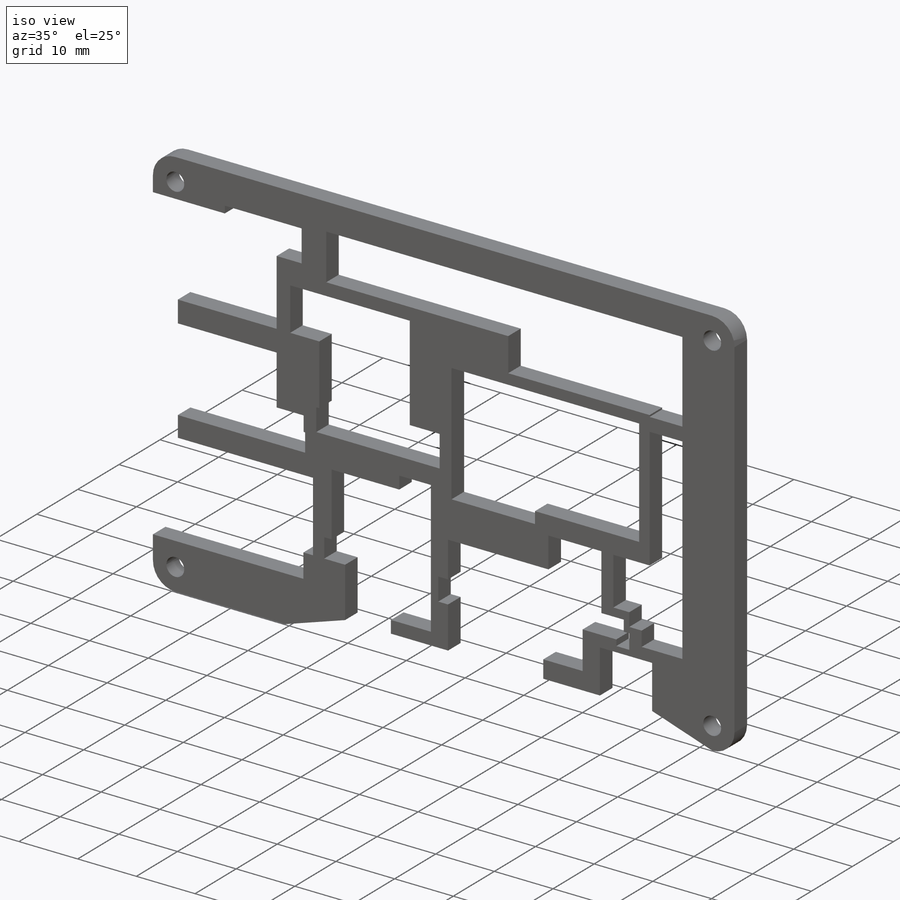
[diagram: iso view]
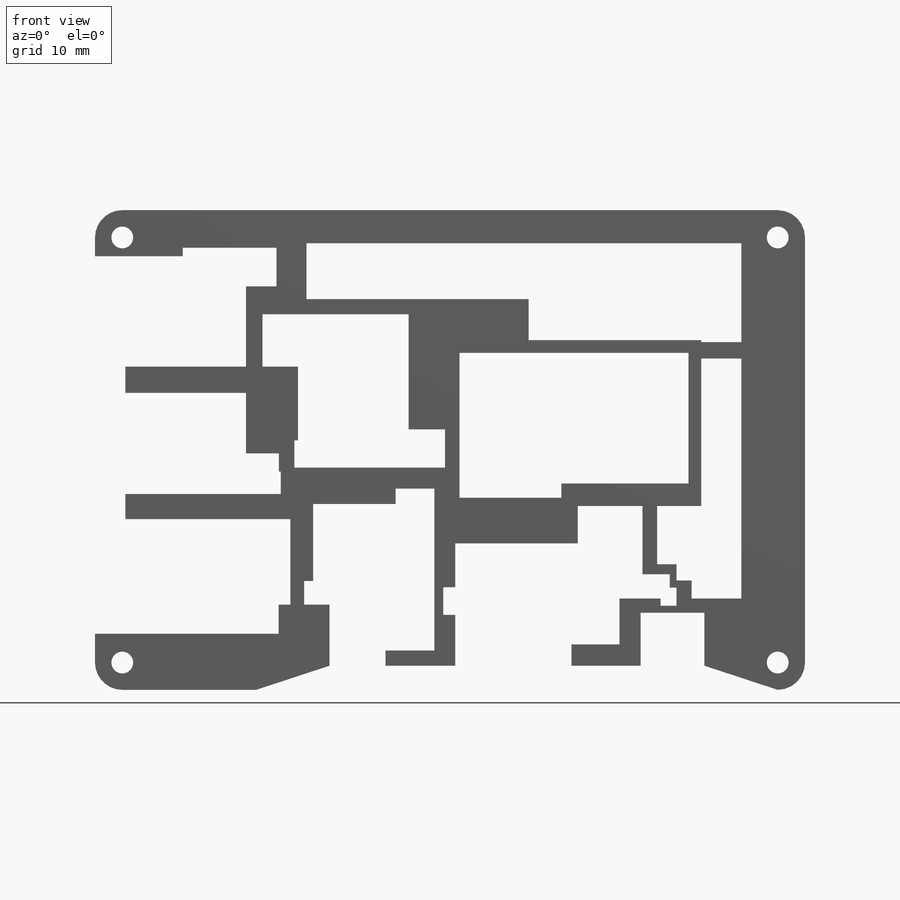
[diagram: front view]
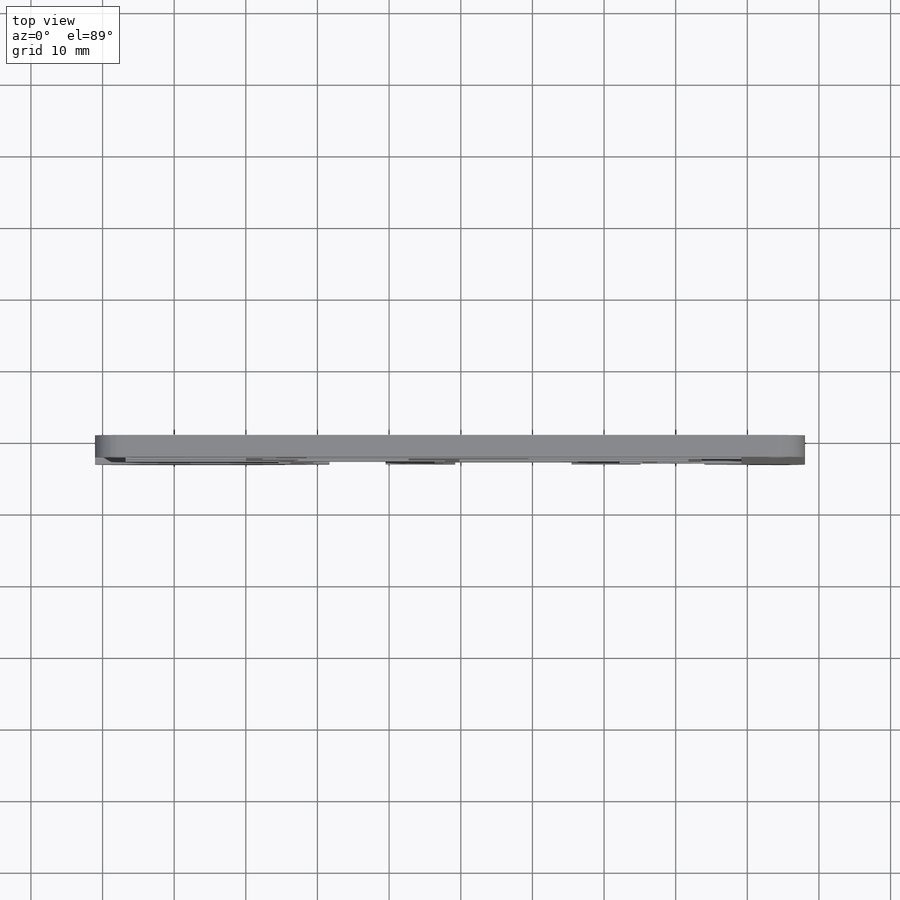
[diagram: top view]
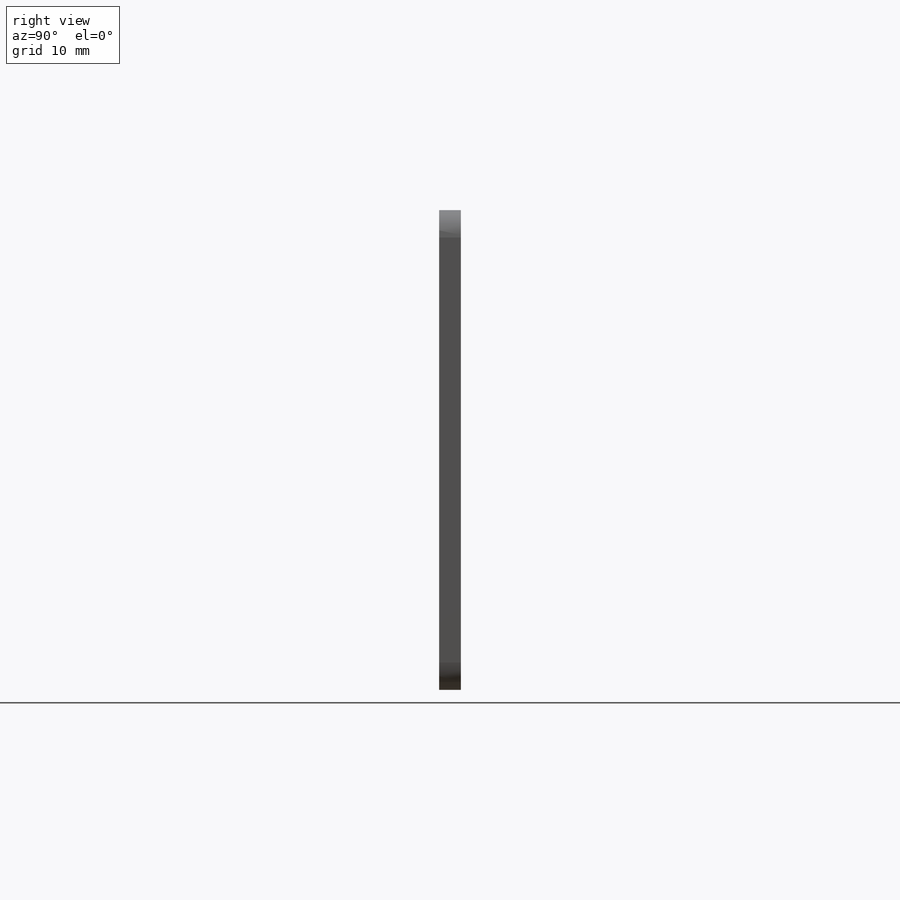
[diagram: right view]
SOLIDWORKS PART (.sldprt)
format: sldprt  version: not decoded by parser v0  size: 1,529,856 bytes
history: native  units: mm
features: sketch x12, extrude x8, cut_extrude x4, material x1 (+11 scaffold rows collapsed)
feature tree (36):
  scaffold x11  (default folders/planes/origin — collapsed)
  material  "Material <not specified>"
  sketch  "Sketch1"  dims[D3=2.6924mm D1=9.652mm D2=2.54mm D4=0.508mm D5=3.81mm D6=0.635mm]
  extrude  "Boss-Extrude1"  Depth=3.048mm
  sketch  "Sketch2"  dims[D1=8.128mm D2=15.24mm D3=12.2428mm D4=1.397mm D5=23.4188mm]
  extrude  "Boss-Extrude2"  Depth=3.048mm
  sketch  "Sketch6"
  extrude  "Boss-Extrude3"  Depth=3.048mm
  sketch  "Sketch7"
  cut_extrude  "Cut-Extrude1"  [1 undecoded]
  sketch  "Sketch8"  dims[D1=23.368mm D2=0.508mm]
  extrude  "Boss-Extrude4"  Depth=3.048mm
  sketch  "Sketch9"
  extrude  "Boss-Extrude5"  Depth=3.048mm
  sketch  "Sketch10"  dims[c1.D1=8.001mm c1.D2=1.6764mm c1.D3=5.4991mm c1.D4=5.3213mm c1.D5=20.6629mm c1.D6=13.0683mm c1.D7=8.001mm c2.D7=45.0deg c2.D8=~10.05596mm c3.D8=45.0deg c3.D9=14.6304mm c3.D7=~4.653626mm c4.D7=135.0deg c4.D8=~3.134181mm]
  extrude  "Boss-Extrude6"  Depth=3.048mm
  sketch  "Sketch12"  dims[c1.D1=6.35mm c1.D2=6.35mm c1.D3=5.9944mm c1.D4=7.0358mm c2.D1=13.97mm c2.D2=3.81mm]
  extrude  "Boss-Extrude7"  Depth=3.048mm
  sketch  "Sketch13"
  extrude  "Boss-Extrude8"  Depth=3.048mm
  sketch  "Sketch14"  dims[D1=2.2754mm]
  cut_extrude  "Cut-Extrude2"  [1 undecoded]
  sketch  "Sketch15"  dims[D1=16.8402mm]
  cut_extrude  "Cut-Extrude3"  [1 undecoded]
  sketch  "Sketch16"  dims[D1=3.048mm]
  cut_extrude  "Cut-Extrude4"  [1 undecoded]
decode coverage: 16 of 24 modeling features carry decoded parameters
note: ~ marks probable driven/reference dimensions
note: 4 parameter values undecoded
summary: no parameter record found for 4 features
note: suppression state not decoded; provenance and decode notes live in map.json
